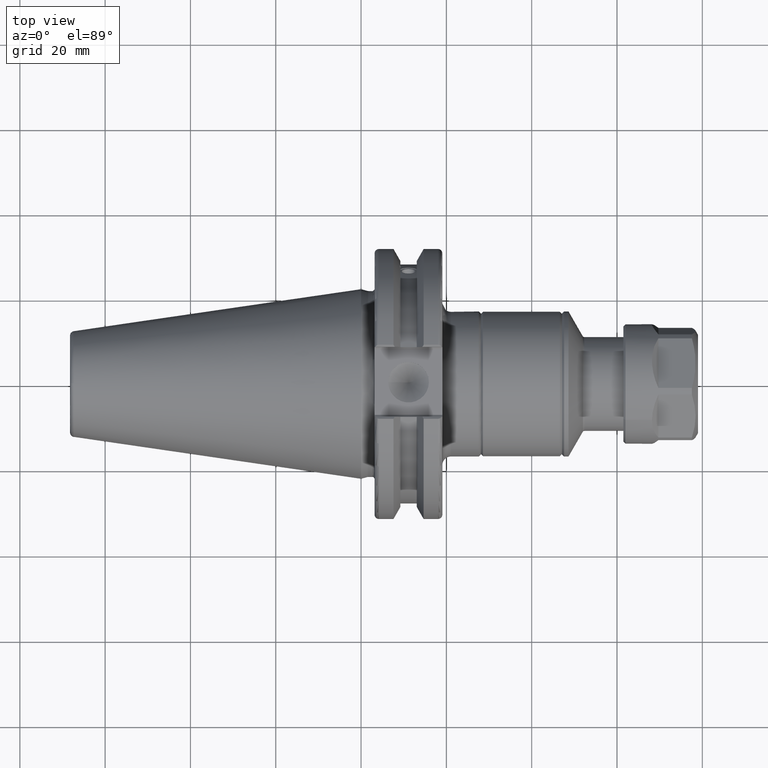
[diagram: clean part render]
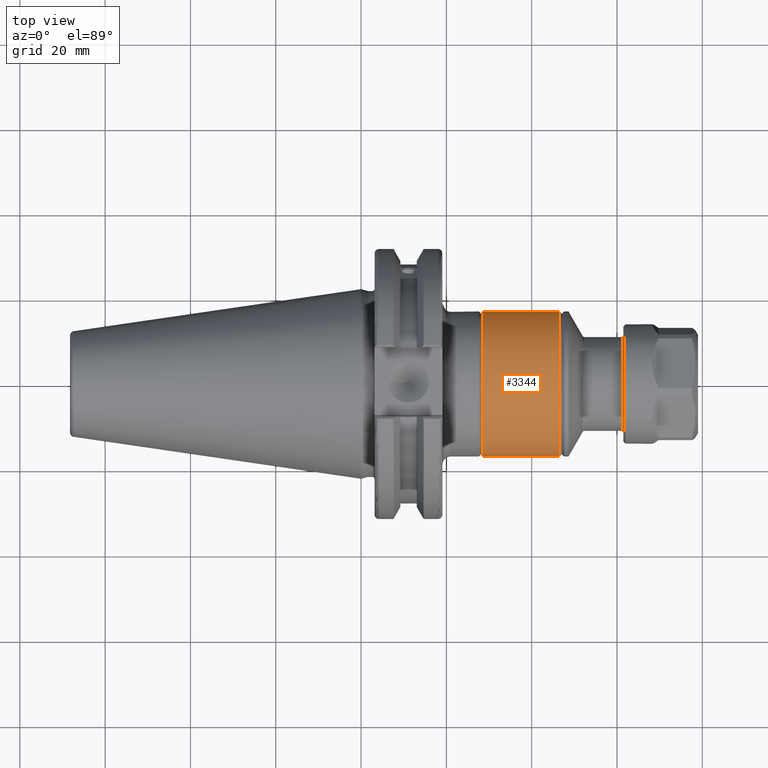
[diagram: same view with one face highlighted and labeled with its STEP entity id]
A machine part, top view. The second image highlights one B-rep face of the part: STEP entity #3344.
In plain terms, the highlighted cylindrical surface (bore or boss wall) has radius 17 mm, axis along (1, 0, 0).
Its self-contained STEP definition (entity closure, byte-faithful):
#361=CYLINDRICAL_SURFACE('',#3857,17.);
#532=FACE_OUTER_BOUND('',#767,.T.);
#767=EDGE_LOOP('',(#2959,#2960,#2961,#2962,#2963,#2964));
#959=LINE('',#6215,#1147);
#1147=VECTOR('',#4786,17.);
#1351=CIRCLE('',#3855,17.);
#1352=CIRCLE('',#3856,17.);
#1353=CIRCLE('',#3858,17.);
#1354=CIRCLE('',#3859,17.);
#1644=VERTEX_POINT('',#6208);
#1645=VERTEX_POINT('',#6210);
#1646=VERTEX_POINT('',#6214);
#1647=VERTEX_POINT('',#6216);
#2092=EDGE_CURVE('',#1644,#1645,#1351,.T.);
#2093=EDGE_CURVE('',#1645,#1644,#1352,.T.);
#2094=EDGE_CURVE('',#1645,#1646,#959,.T.);
#2095=EDGE_CURVE('',#1647,#1646,#1353,.T.);
#2096=EDGE_CURVE('',#1646,#1647,#1354,.T.);
#2959=ORIENTED_EDGE('',*,*,#2092,.F.);
#2960=ORIENTED_EDGE('',*,*,#2093,.F.);
#2961=ORIENTED_EDGE('',*,*,#2094,.T.);
#2962=ORIENTED_EDGE('',*,*,#2095,.F.);
#2963=ORIENTED_EDGE('',*,*,#2096,.F.);
#2964=ORIENTED_EDGE('',*,*,#2094,.F.);
#3344=ADVANCED_FACE('',(#532),#361,.T.);
#3855=AXIS2_PLACEMENT_3D('',#6211,#4780,#4781);
#3856=AXIS2_PLACEMENT_3D('',#6212,#4782,#4783);
#3857=AXIS2_PLACEMENT_3D('',#6213,#4784,#4785);
#3858=AXIS2_PLACEMENT_3D('',#6217,#4787,#4788);
#3859=AXIS2_PLACEMENT_3D('',#6218,#4789,#4790);
#4780=DIRECTION('center_axis',(1.,0.,0.));
#4781=DIRECTION('ref_axis',(0.,-1.,0.));
#4782=DIRECTION('center_axis',(1.,0.,0.));
#4783=DIRECTION('ref_axis',(0.,-1.,0.));
#4784=DIRECTION('center_axis',(1.,0.,0.));
#4785=DIRECTION('ref_axis',(0.,1.,0.));
#4786=DIRECTION('',(-1.,0.,0.));
#4787=DIRECTION('center_axis',(-1.,0.,0.));
#4788=DIRECTION('ref_axis',(0.,-1.,0.));
#4789=DIRECTION('center_axis',(-1.,0.,0.));
#4790=DIRECTION('ref_axis',(0.,-1.,0.));
#6208=CARTESIAN_POINT('',(18.5,17.,2.0818995585505E-15));
#6210=CARTESIAN_POINT('',(18.5,-17.,-2.0818995585505E-15));
#6211=CARTESIAN_POINT('Origin',(18.5,0.,0.));
#6212=CARTESIAN_POINT('Origin',(18.5,0.,0.));
#6213=CARTESIAN_POINT('Origin',(9.5,0.,0.));
#6214=CARTESIAN_POINT('',(0.499999999999998,-17.,-2.0818995585505E-15));
#6215=CARTESIAN_POINT('',(9.5,-17.,-2.0818995585505E-15));
#6216=CARTESIAN_POINT('',(0.499999999999998,17.,-2.0818995585505E-15));
#6217=CARTESIAN_POINT('Origin',(0.499999999999998,0.,0.));
#6218=CARTESIAN_POINT('Origin',(0.499999999999998,0.,0.));